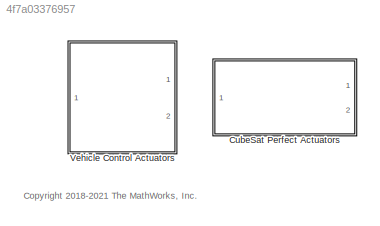
MODEL slx_4f7a03376957
KIND library
CONFIG AbsTol = auto
CONFIG EnableMultiTasking = off
CONFIG FixedStep = auto
CONFIG MaxStep = auto
CONFIG MinStep = auto
CONFIG RelTol = 1e-3
CONFIG SampleTimeConstraint = Unconstrained
CONFIG SolverName = VariableStepAuto
CONFIG StartTime = 0.0
CONFIG StopTime = 10.0
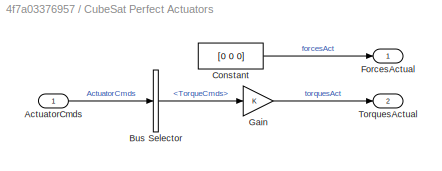
BLOCK [SubSystem] CubeSat Perfect Actuators
  Ports = [1, 2]
  RequestExecContextInheritance = off
BLOCK [Inport] CubeSat Perfect Actuators/ActuatorCmds
  OutDataTypeStr = Bus: FCSOutBus
BLOCK [BusSelector] CubeSat Perfect Actuators/Bus Selector
  OutputSignals = ACSOut.TorqueCmds
  Ports = [1, 1]
BLOCK [Constant] CubeSat Perfect Actuators/Constant
  Value = [0 0 0]
BLOCK [Outport] CubeSat Perfect Actuators/ForcesActual
  VectorParamsAs1DForOutWhenUnconnected = off
BLOCK [Gain] CubeSat Perfect Actuators/Gain
BLOCK [Outport] CubeSat Perfect Actuators/TorquesActual
  Port = 2
  VectorParamsAs1DForOutWhenUnconnected = off
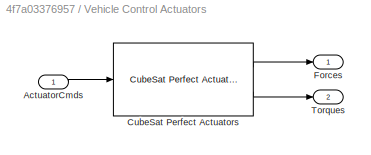
BLOCK [SubSystem] Vehicle Control Actuators
  Ports = [1, 2]
  RequestExecContextInheritance = off
BLOCK [Outport] Vehicle Control Actuators/ Forces
  VectorParamsAs1DForOutWhenUnconnected = off
BLOCK [Outport] Vehicle Control Actuators/ Torques
  Port = 2
  VectorParamsAs1DForOutWhenUnconnected = off
BLOCK [Inport] Vehicle Control Actuators/ActuatorCmds
BLOCK [Reference] Vehicle Control Actuators/CubeSat Perfect Actuators  REF=$bdroot/CubeSat Perfect Actuators
  Ports = [1, 2]
  SourceBlock = $bdroot/CubeSat Perfect Actuators
  SourceType = SubSystem
ANNOTATION (root): <copyright redacted>
LINE CubeSat Perfect Actuators/ActuatorCmds:1 -> CubeSat Perfect Actuators/Bus Selector:1
LINE CubeSat Perfect Actuators/Bus Selector:1 -> CubeSat Perfect Actuators/Gain:1
LINE CubeSat Perfect Actuators/Constant:1 -> CubeSat Perfect Actuators/ForcesActual:1
LINE CubeSat Perfect Actuators/Gain:1 -> CubeSat Perfect Actuators/TorquesActual:1
LINE Vehicle Control Actuators/ActuatorCmds:1 -> Vehicle Control Actuators/CubeSat Perfect Actuators:1
LINE Vehicle Control Actuators/CubeSat Perfect Actuators:1 -> Vehicle Control Actuators/ Forces:1
LINE Vehicle Control Actuators/CubeSat Perfect Actuators:2 -> Vehicle Control Actuators/ Torques:1
